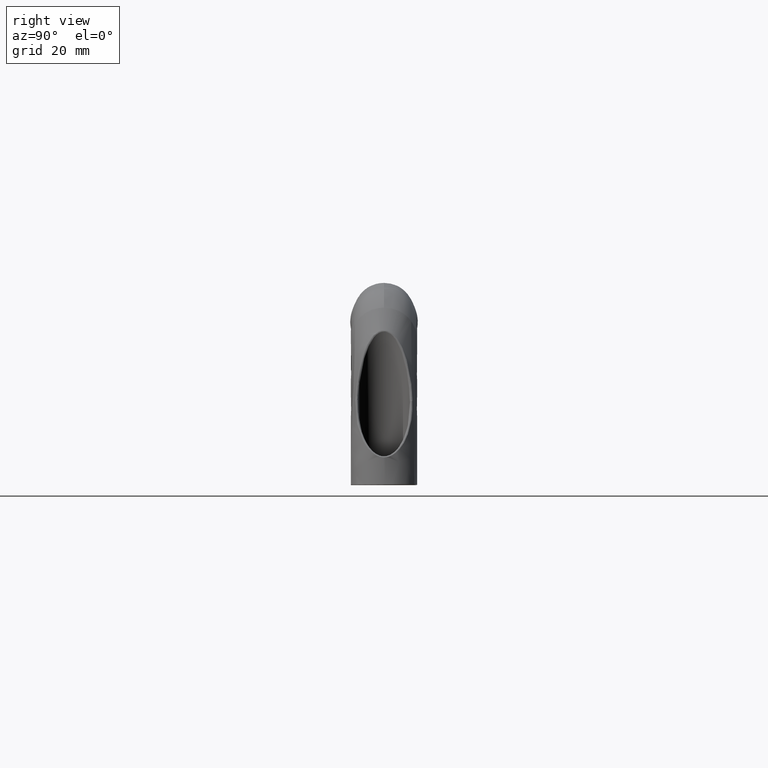
[diagram: clean part render]
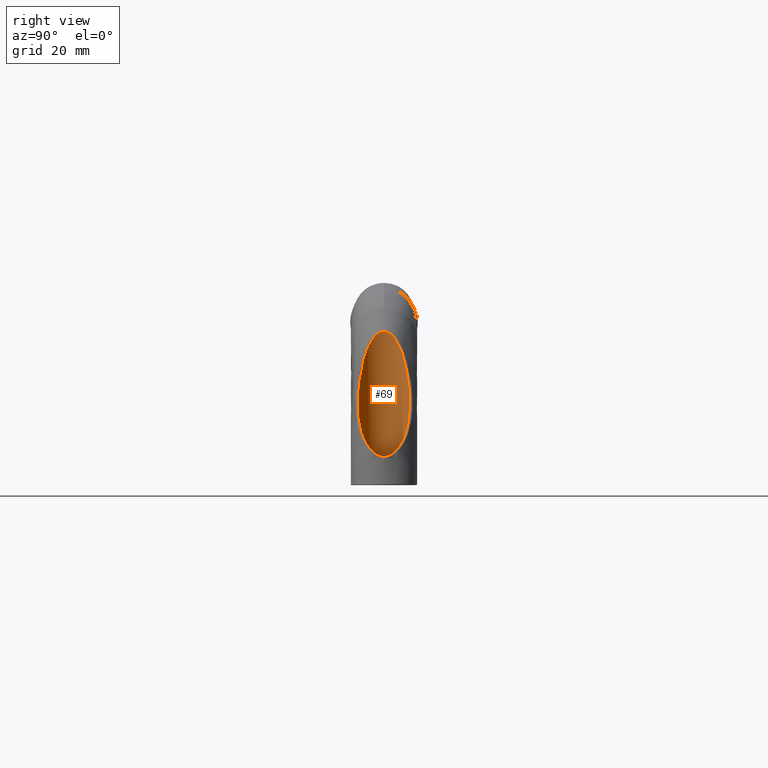
[diagram: same view with one face highlighted and labeled with its STEP entity id]
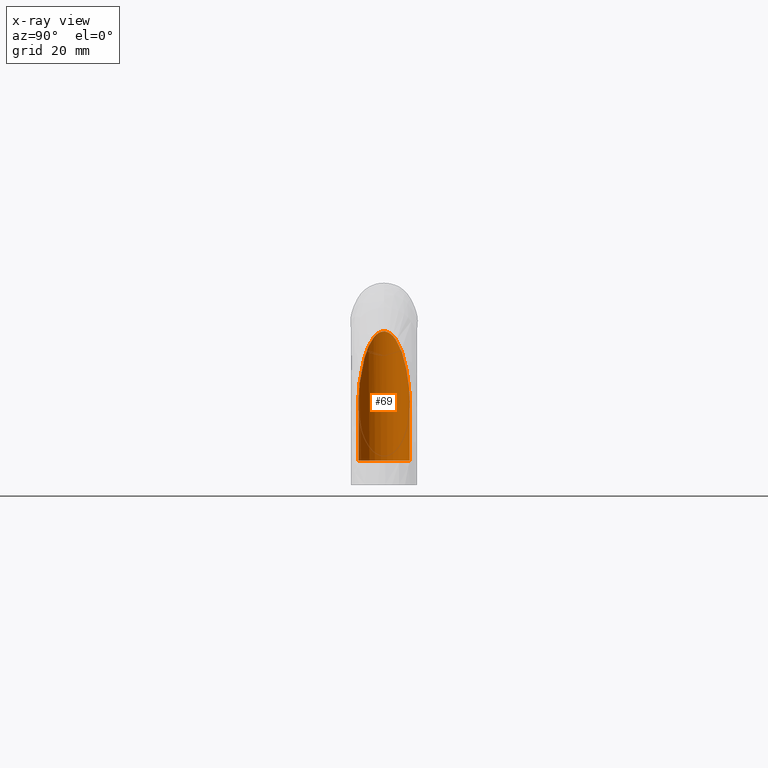
[diagram: x-ray of the same camera — body ghosted, the highlighted face saturated]
A machine part, right view. The second image highlights one B-rep face of the part: STEP entity #69.
The next image is the same camera in x-ray: the body ghosted, the highlighted face saturated — about 0% of this face is hidden behind the body in this view.
In plain terms, the highlighted cylindrical surface (edge-blend (fillet) strip) has radius 8.15 mm, axis along (-0, -0, 1).
Its self-contained STEP definition (entity closure, byte-faithful):
#69=ADVANCED_FACE('',(#385),#384,.F.);
#384=CYLINDRICAL_SURFACE('',#3769,8.15000000000E+00);
#385=FACE_OUTER_BOUND('',#3770,.T.);
#3766=CARTESIAN_POINT('',(8.06203112176E-07,3.19999780576E+01,4.62084598541E+01));
#3767=DIRECTION('',(-0.00000000000E+00,-0.00000000000E+00,1.00000000000E+00));
#3768=DIRECTION('',(9.99961923064E-01,-8.72653549837E-03,0.00000000000E+00));
#3769=AXIS2_PLACEMENT_3D('',#3766,#3767,#3768);
#3770=EDGE_LOOP('',(#4690,#4691,#4692,#4693));
#4690=ORIENTED_EDGE('',*,*,#4851,.F.);
#4691=ORIENTED_EDGE('',*,*,#4842,.F.);
#4692=ORIENTED_EDGE('',*,*,#4852,.F.);
#4693=ORIENTED_EDGE('',*,*,#4853,.F.);
#4842=EDGE_CURVE('',#5279,#5278,#5312,.T.);
#4851=EDGE_CURVE('',#5278,#5326,#5374,.T.);
#4852=EDGE_CURVE('',#5319,#5279,#5380,.T.);
#4853=EDGE_CURVE('',#5326,#5319,#5386,.T.);
#5278=VERTEX_POINT('',#6695);
#5279=VERTEX_POINT('',#6696);
#5312=CIRCLE('',#6765,8.15000000000E+00);
#5319=VERTEX_POINT('',#6767);
#5326=VERTEX_POINT('',#6772);
#5374=LINE('',#6896,#6897);
#5380=LINE('',#6899,#6900);
#5386=(BOUNDED_CURVE() B_SPLINE_CURVE(3,(#6902,#6903,#6904,#6905,#6906,#6907,#6908,#6909,#6910,#6911,#6912,#6913,#6914,#6915,#6916,#6917,#6918,#6919,#6920,#6921,#6922,#6923,#6924,#6925,#6926,#6927,#6928,#6929,#6930,#6931,#6932,#6933,#6934,#6935,#6936,#6937,#6938,#6939,#6940,#6941,#6942,#6943,#6944,#6945,#6946,#6947,#6948,#6949,#6950,#6951,#6952,#6953,#6954,#6955,#6956,#6957,#6958,#6959),.UNSPECIFIED.,.F.,.F.) B_SPLINE_CURVE_WITH_KNOTS((4,2,2,2,2,2,2,2,2,2,2,2,2,2,2,2,2,2,2,2,2,2,2,2,2,2,2,2,4),(-5.29673537713E+01,-4.96568941605E+01,-4.63464345498E+01,-4.30359749391E+01,-3.97255153284E+01,-3.64150557177E+01,-3.31045961071E+01,-3.14493663017E+01,-2.97941364964E+01,-2.89665215937E+01,-2.81389066910E+01,-2.73112917884E+01,-2.68974843370E+01,-2.64836768857E+01,-2.60698694343E+01,-2.56560619830E+01,-2.48284470803E+01,-2.40008321776E+01,-2.31732172750E+01,-2.23456023723E+01,-2.15179874696E+01,-1.98627576643E+01,-1.82075278589E+01,-1.65522980535E+01,-1.32418384428E+01,-9.93137883212E+00,-6.62091922141E+00,-3.31045961071E+00,0.00000000000E+00),.UNSPECIFIED.) CURVE() GEOMETRIC_REPRESENTATION_ITEM() RATIONAL_B_SPLINE_CURVE((1.00000000000E+00,1.00000000000E+00,1.00000000000E+00,1.00000000000E+00,1.00000000000E+00,1.00000000000E+00,1.00000000000E+00,1.00000000000E+00,1.00000000000E+00,1.00000000000E+00,1.00000000000E+00,1.00000000000E+00,1.00000000000E+00,1.00000000000E+00,1.00000000000E+00,1.00000000000E+00,1.00000000000E+00,1.00000000000E+00,1.00000000000E+00,1.00000000000E+00,1.00000000000E+00,1.00000000000E+00,1.00000000000E+00,1.00000000000E+00,1.00000000000E+00,1.00000000000E+00,1.00000000000E+00,1.00000000000E+00,1.00000000000E+00,1.00000000000E+00,1.00000000000E+00,1.00000000000E+00,1.00000000000E+00,1.00000000000E+00,1.00000000000E+00,1.00000000000E+00,1.00000000000E+00,1.00000000000E+00,1.00000000000E+00,1.00000000000E+00,1.00000000000E+00,1.00000000000E+00,1.00000000000E+00,1.00000000000E+00,1.00000000000E+00,1.00000000000E+00,1.00000000000E+00,1.00000000000E+00,1.00000000000E+00,1.00000000000E+00,1.00000000000E+00,1.00000000000E+00,1.00000000000E+00,1.00000000000E+00,1.00000000000E+00,1.00000000000E+00,1.00000000000E+00,1.00000000000E+00)) REPRESENTATION_ITEM('') );
#6695=CARTESIAN_POINT('',(8.06203104296E-07,2.38499780576E+01,2.58000213505E+01));
#6696=CARTESIAN_POINT('',(8.06203102819E-07,4.01499780576E+01,2.58000213505E+01));
#6762=CARTESIAN_POINT('',(8.06203114688E-07,3.19999780576E+01,2.58000213505E+01));
#6763=DIRECTION('',(0.00000000000E+00,0.00000000000E+00,1.00000000000E+00));
#6764=DIRECTION('',(1.45639251579E-15,-1.00000000000E+00,-0.00000000000E+00));
#6765=AXIS2_PLACEMENT_3D('',#6762,#6763,#6764);
#6767=CARTESIAN_POINT('',(8.06203103110E-07,4.01499780576E+01,4.43745651227E+01));
#6772=CARTESIAN_POINT('',(8.06203105888E-07,2.38499780576E+01,4.43745651229E+01));
#6896=CARTESIAN_POINT('',(8.06203104296E-07,2.38499780576E+01,2.58000213505E+01));
#6897=VECTOR('',#6898,1.85745437724E+01);
#6898=DIRECTION('',(8.56824226380E-17,0.00000000000E+00,1.00000000000E+00));
#6899=CARTESIAN_POINT('',(8.06203103110E-07,4.01499780576E+01,4.43745651227E+01));
#6900=VECTOR('',#6901,1.85745437722E+01);
#6901=DIRECTION('',(-1.56993888647E-17,0.00000000000E+00,-1.00000000000E+00));
#6902=CARTESIAN_POINT('',(8.06203105888E-07,2.38499780576E+01,4.43745651229E+01));
#6903=CARTESIAN_POINT('',(-5.21180254876E-01,2.38499780576E+01,4.53521354019E+01));
#6904=CARTESIAN_POINT('',(-9.74893914044E-01,2.38971155222E+01,4.63505876421E+01));
#6905=CARTESIAN_POINT('',(-1.82077668463E+00,2.40443781235E+01,4.83653788590E+01));
#6906=CARTESIAN_POINT('',(-2.21162886813E+00,2.41458202572E+01,4.93820792657E+01));
#6907=CARTESIAN_POINT('',(-2.96215714572E+00,2.43970364665E+01,5.14220406353E+01));
#6908=CARTESIAN_POINT('',(-3.32138986628E+00,2.45470521668E+01,5.24454467558E+01));
#6909=CARTESIAN_POINT('',(-4.02483250213E+00,2.49021997310E+01,5.44917176718E+01));
#6910=CARTESIAN_POINT('',(-4.36961777686E+00,2.51077708754E+01,5.55168787664E+01));
#6911=CARTESIAN_POINT('',(-5.04967621037E+00,2.55892956889E+01,5.75494801422E+01));
#6912=CARTESIAN_POINT('',(-5.38445294896E+00,2.58643510694E+01,5.85555729917E+01));
#6913=CARTESIAN_POINT('',(-6.04670805623E+00,2.65158580086E+01,6.05348083956E+01));
#6914=CARTESIAN_POINT('',(-6.37437828865E+00,2.68903233887E+01,6.15085799462E+01));
#6915=CARTESIAN_POINT('',(-6.85714344315E+00,2.75861625128E+01,6.29253382884E+01));
#6916=CARTESIAN_POINT('',(-7.01750464930E+00,2.78427299692E+01,6.33929067000E+01));
#6917=CARTESIAN_POINT('',(-7.32621363726E+00,2.84146361750E+01,6.42864369640E+01));
#6918=CARTESIAN_POINT('',(-7.47495957659E+00,2.87291939109E+01,6.47135705263E+01));
#6919=CARTESIAN_POINT('',(-7.68265704955E+00,2.92729084424E+01,6.53054024210E+01));
#6920=CARTESIAN_POINT('',(-7.74967311510E+00,2.94678571250E+01,6.54955374034E+01));
#6921=CARTESIAN_POINT('',(-7.87282890423E+00,2.98815742589E+01,6.58435516164E+01));
#6922=CARTESIAN_POINT('',(-7.92923268202E+00,3.01005814230E+01,6.60021924536E+01));
#6923=CARTESIAN_POINT('',(-8.02751788614E+00,3.05719042043E+01,6.62774630394E+01));
#6924=CARTESIAN_POINT('',(-8.06939648612E+00,3.08263264880E+01,6.63940701624E+01));
#6925=CARTESIAN_POINT('',(-8.11377385605E+00,3.12210728020E+01,6.65167822933E+01));
#6926=CARTESIAN_POINT('',(-8.12564611052E+00,3.13554865476E+01,6.65494163363E+01));
#6927=CARTESIAN_POINT('',(-8.14279539836E+00,3.16306853651E+01,6.65960854346E+01));
#6928=CARTESIAN_POINT('',(-8.14795452309E+00,3.17707659686E+01,6.66097936518E+01));
#6929=CARTESIAN_POINT('',(-8.15103655586E+00,3.20479796424E+01,6.66168963429E+01));
#6930=CARTESIAN_POINT('',(-8.14903862116E+00,3.21862903959E+01,6.66126003848E+01));
#6931=CARTESIAN_POINT('',(-8.13805459478E+00,3.24621578567E+01,6.65832793286E+01));
#6932=CARTESIAN_POINT('',(-8.12898581746E+00,3.26005055775E+01,6.65585653856E+01));
#6933=CARTESIAN_POINT('',(-8.09207039398E+00,3.30075052338E+01,6.64569968476E+01));
#6934=CARTESIAN_POINT('',(-8.05479580009E+00,3.32663075098E+01,6.63534937137E+01));
#6935=CARTESIAN_POINT('',(-7.96347469318E+00,3.37510910240E+01,6.60982807547E+01));
#6936=CARTESIAN_POINT('',(-7.90868019890E+00,3.39809931052E+01,6.59444665993E+01));
#6937=CARTESIAN_POINT('',(-7.78928055907E+00,3.44080377894E+01,6.56076661015E+01));
#6938=CARTESIAN_POINT('',(-7.72451793764E+00,3.46065283873E+01,6.54242506473E+01));
#6939=CARTESIAN_POINT('',(-7.58774447115E+00,3.49813227292E+01,6.50351780501E+01));
#6940=CARTESIAN_POINT('',(-7.51571424272E+00,3.51573585929E+01,6.48294571197E+01));
#6941=CARTESIAN_POINT('',(-7.36869101681E+00,3.54867251604E+01,6.44078109742E+01));
#6942=CARTESIAN_POINT('',(-7.29334523426E+00,3.56409735870E+01,6.41908858531E+01));
#6943=CARTESIAN_POINT('',(-7.06324388329E+00,3.60794454369E+01,6.35258460278E+01));
#6944=CARTESIAN_POINT('',(-6.90450241404E+00,3.63397422607E+01,6.30636637625E+01));
#6945=CARTESIAN_POINT('',(-6.58038928018E+00,3.68170502356E+01,6.21136490767E+01));
#6946=CARTESIAN_POINT('',(-6.41601692784E+00,3.70322162133E+01,6.16287540819E+01));
#6947=CARTESIAN_POINT('',(-6.08581235916E+00,3.74269092840E+01,6.06498407292E+01));
#6948=CARTESIAN_POINT('',(-5.91963647294E+00,3.76067637358E+01,6.01548174086E+01));
#6949=CARTESIAN_POINT('',(-5.41830555759E+00,3.81062912481E+01,5.86571226277E+01));
#6950=CARTESIAN_POINT('',(-5.08051532100E+00,3.83865654462E+01,5.76419857875E+01));
#6951=CARTESIAN_POINT('',(-4.39461087985E+00,3.88765710163E+01,5.55912741622E+01));
#6952=CARTESIAN_POINT('',(-4.04865339800E+00,3.90843467162E+01,5.45619876419E+01));
#6953=CARTESIAN_POINT('',(-3.34146198291E+00,3.94440701168E+01,5.25029177737E+01));
#6954=CARTESIAN_POINT('',(-2.98032567368E+00,3.95959422049E+01,5.14728433889E+01));
#6955=CARTESIAN_POINT('',(-2.22574818263E+00,3.98502684148E+01,4.94190955233E+01));
#6956=CARTESIAN_POINT('',(-1.83276382132E+00,3.99529681739E+01,4.83952755211E+01));
#6957=CARTESIAN_POINT('',(-9.81847141099E-01,4.01021415081E+01,4.63658342648E+01));
#6958=CARTESIAN_POINT('',(-5.25292215727E-01,4.01499780576E+01,4.53598481354E+01));
#6959=CARTESIAN_POINT('',(8.06203103110E-07,4.01499780576E+01,4.43745651227E+01));